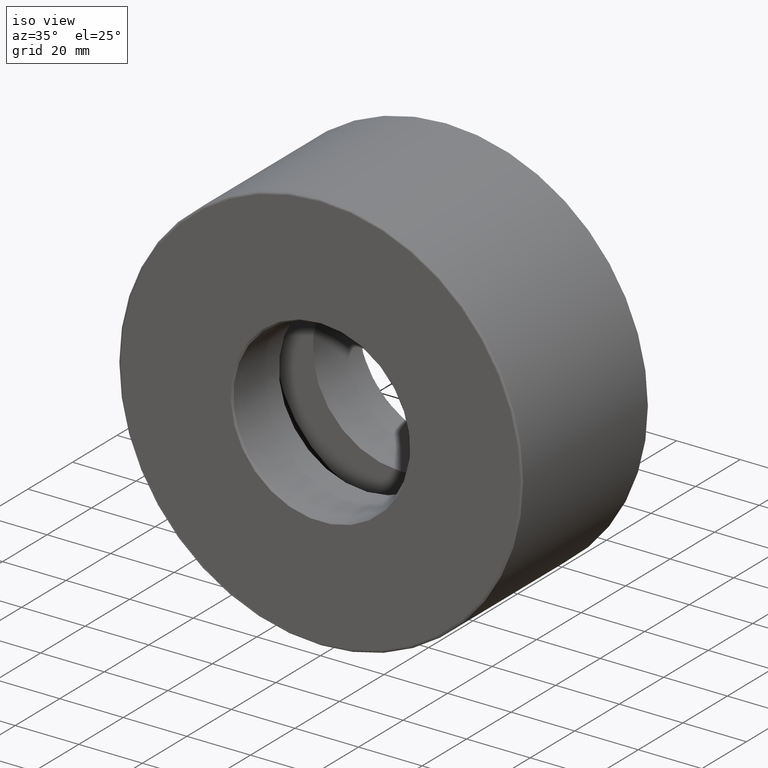
[diagram: clean part render]
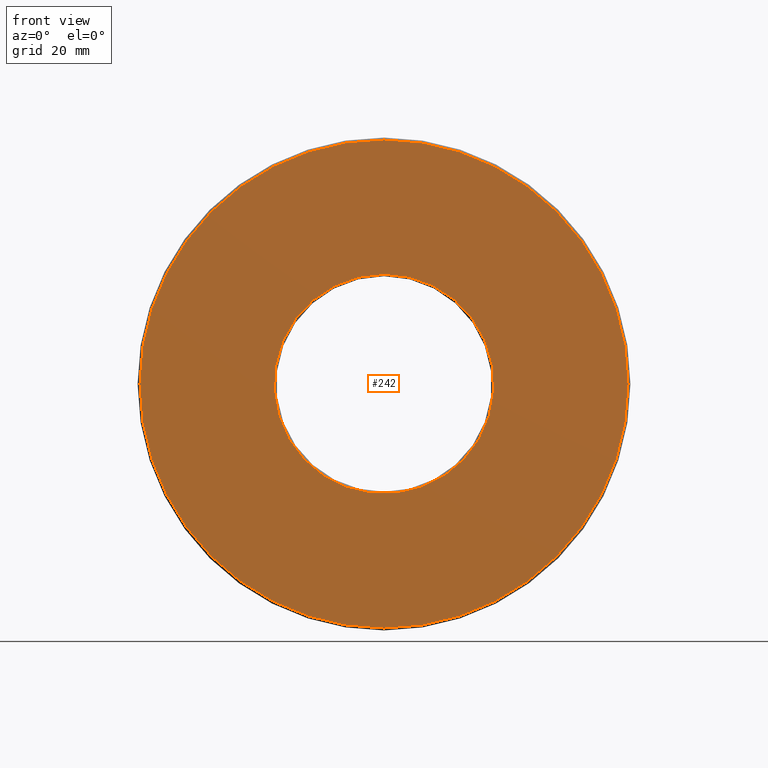
[diagram: tour spotlight — one face highlighted and labeled with its STEP entity id]
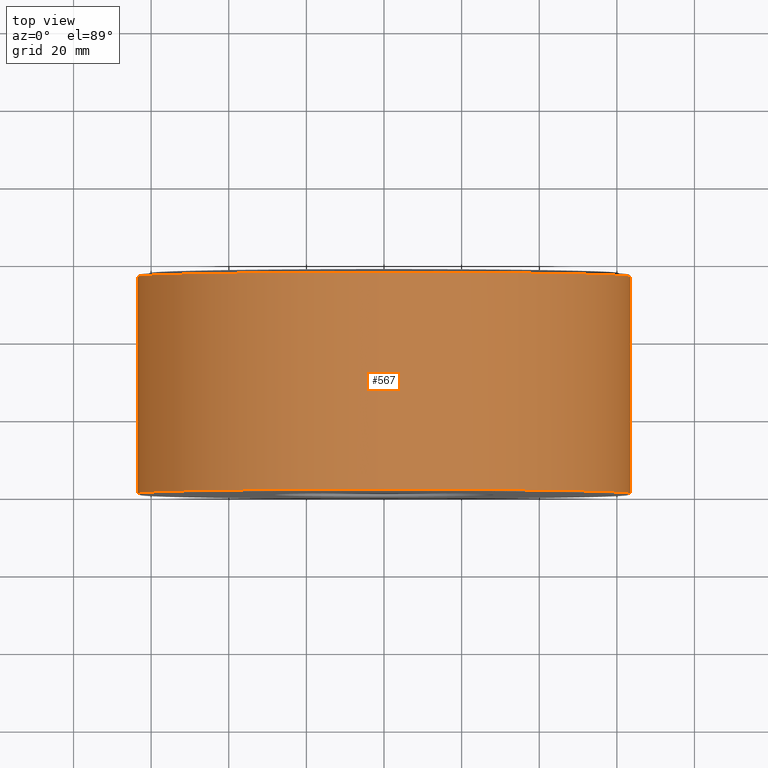
[diagram: tour spotlight — one face highlighted and labeled with its STEP entity id]
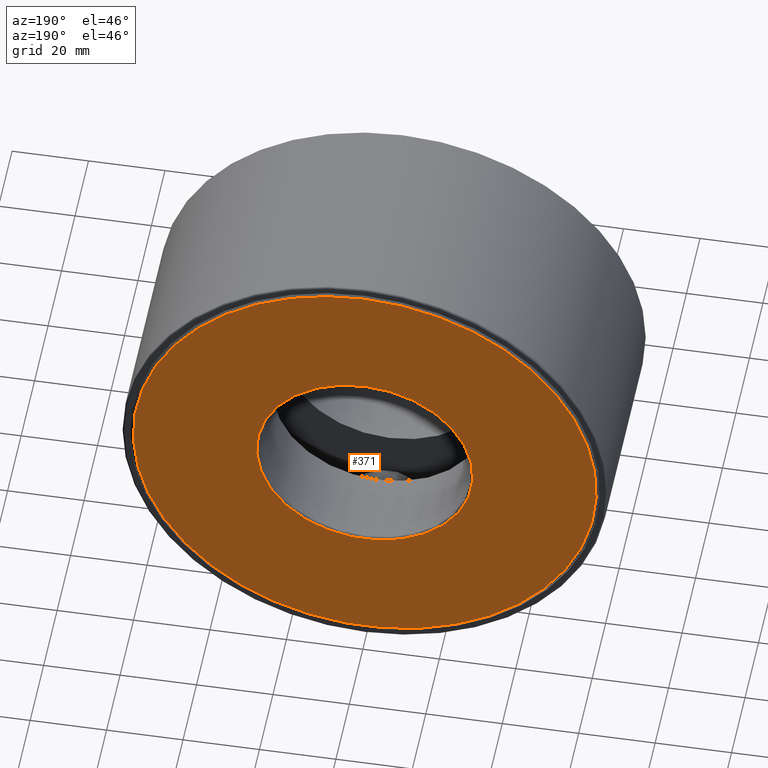
[diagram: tour spotlight — one face highlighted and labeled with its STEP entity id]
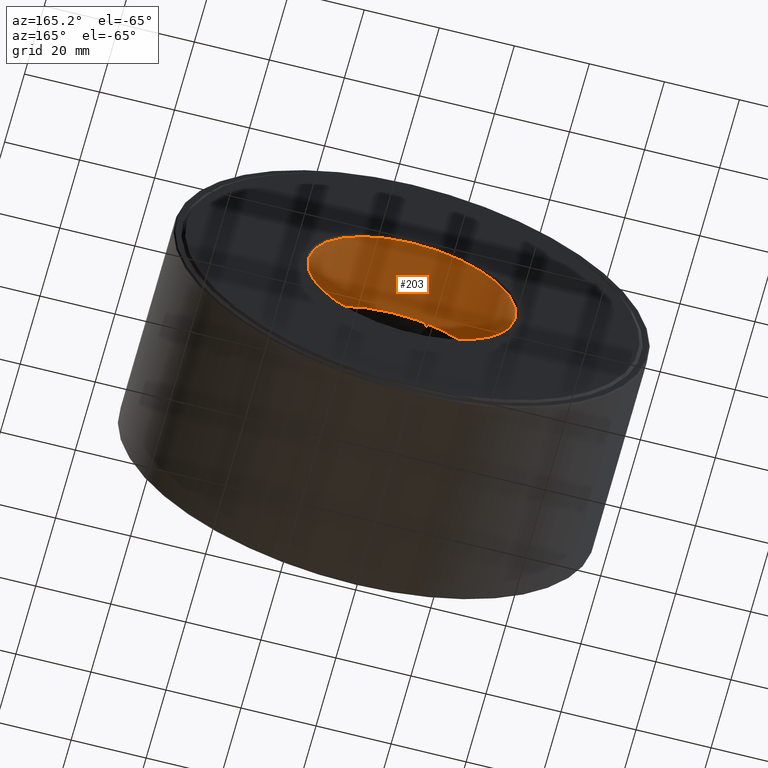
[diagram: tour spotlight — one face highlighted and labeled with its STEP entity id]
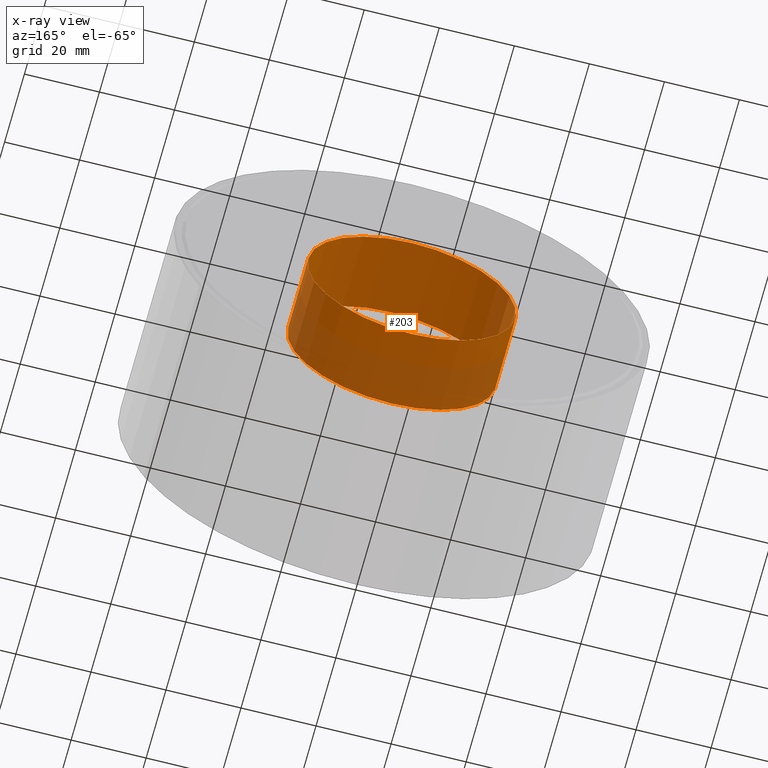
[diagram: x-ray of the same camera — body ghosted, this tour face saturated]
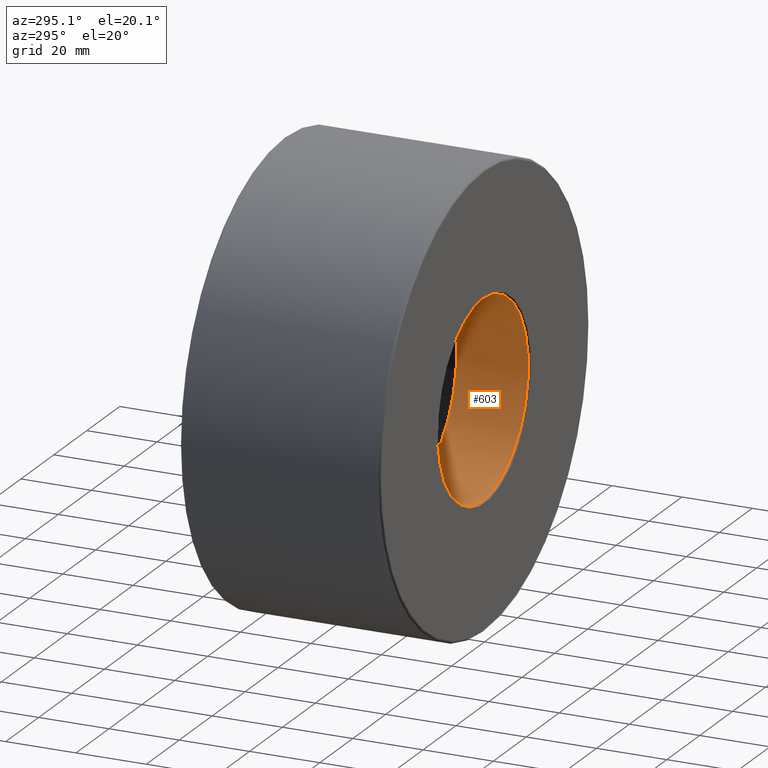
[diagram: tour spotlight — one face highlighted and labeled with its STEP entity id]
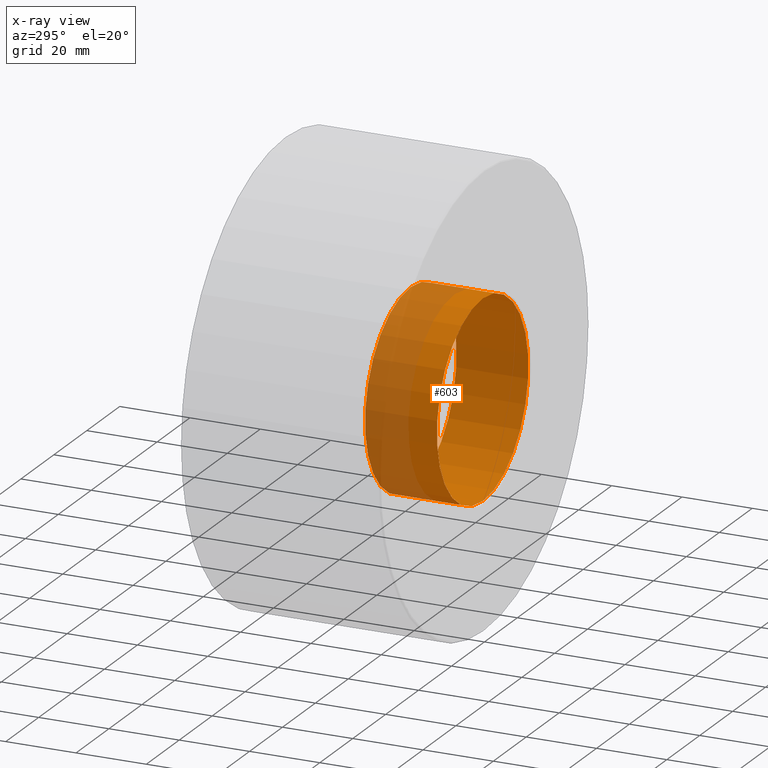
[diagram: x-ray of the same camera — body ghosted, this tour face saturated]
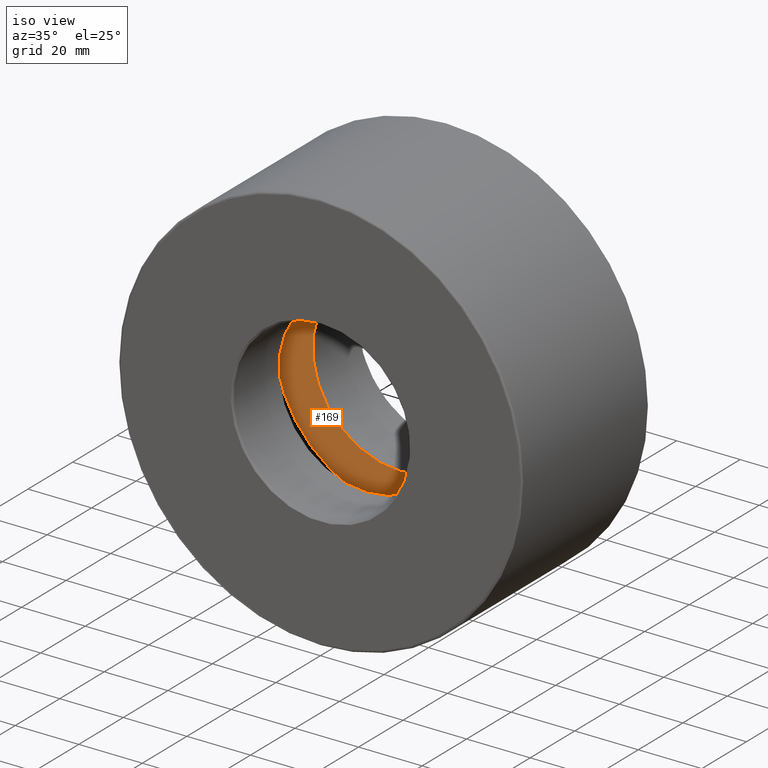
[diagram: tour spotlight — one face highlighted and labeled with its STEP entity id]
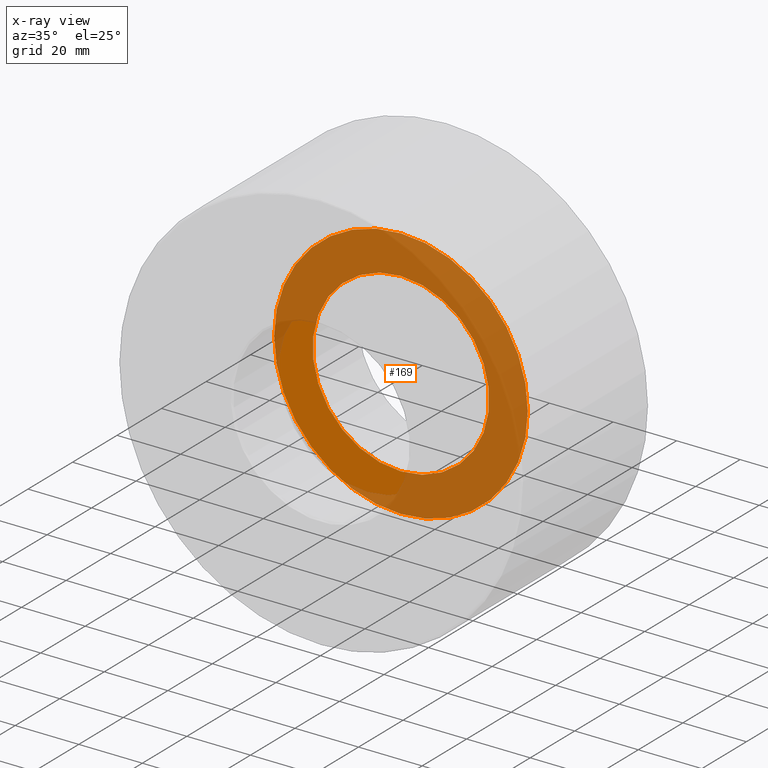
[diagram: x-ray of the same camera — body ghosted, this tour face saturated]
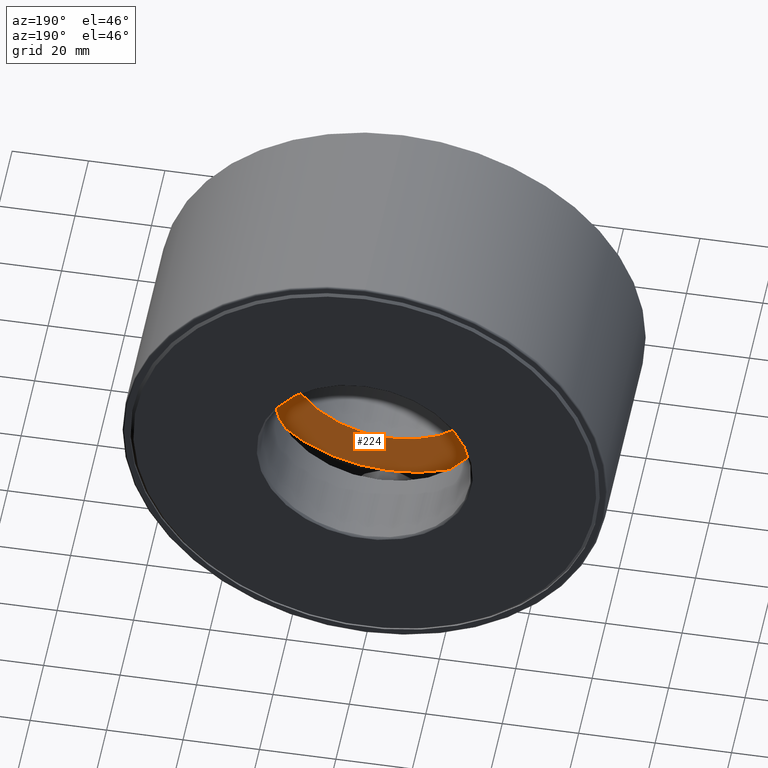
[diagram: tour spotlight — one face highlighted and labeled with its STEP entity id]
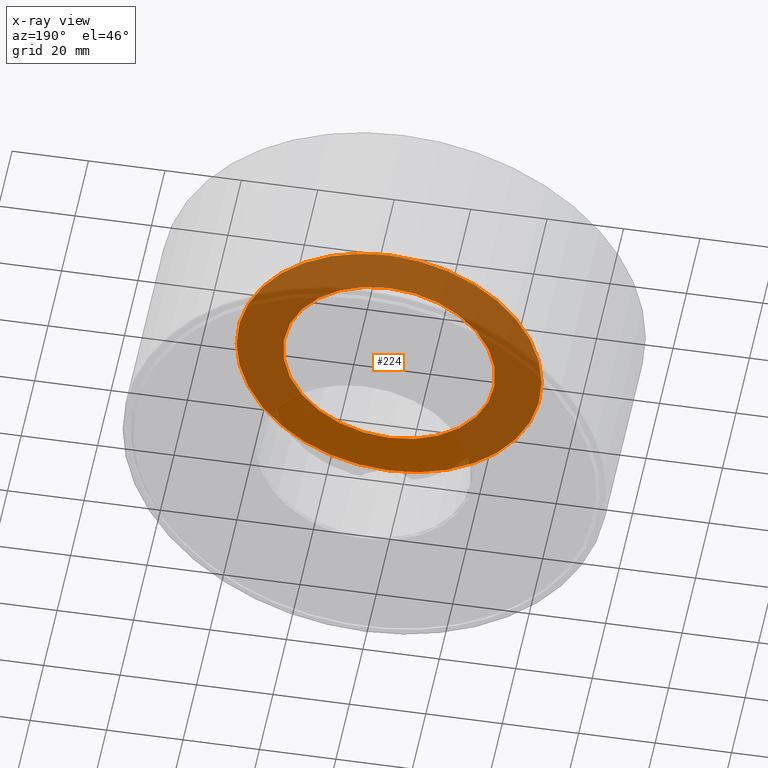
[diagram: x-ray of the same camera — body ghosted, this tour face saturated]
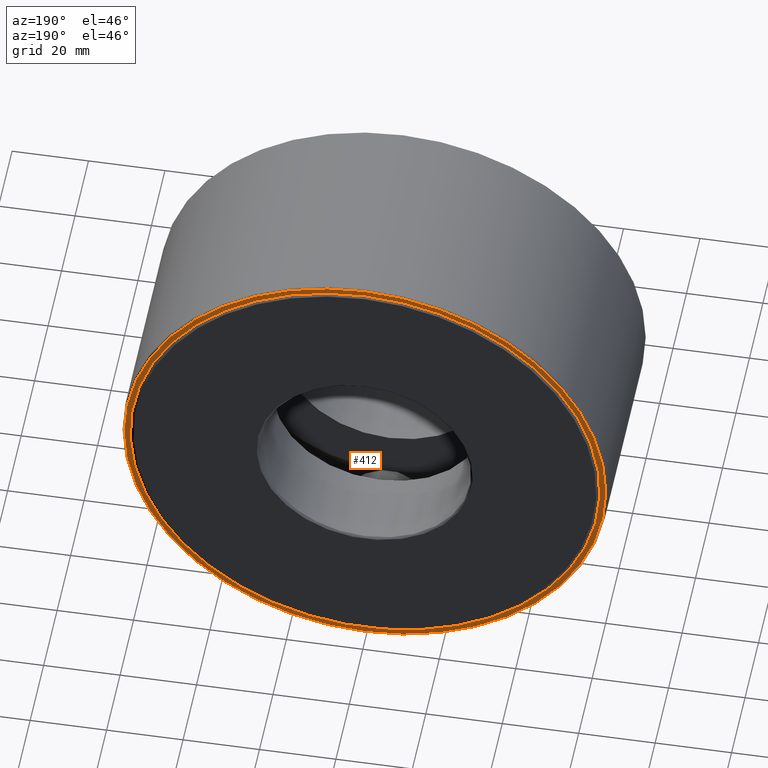
[diagram: tour spotlight — one face highlighted and labeled with its STEP entity id]
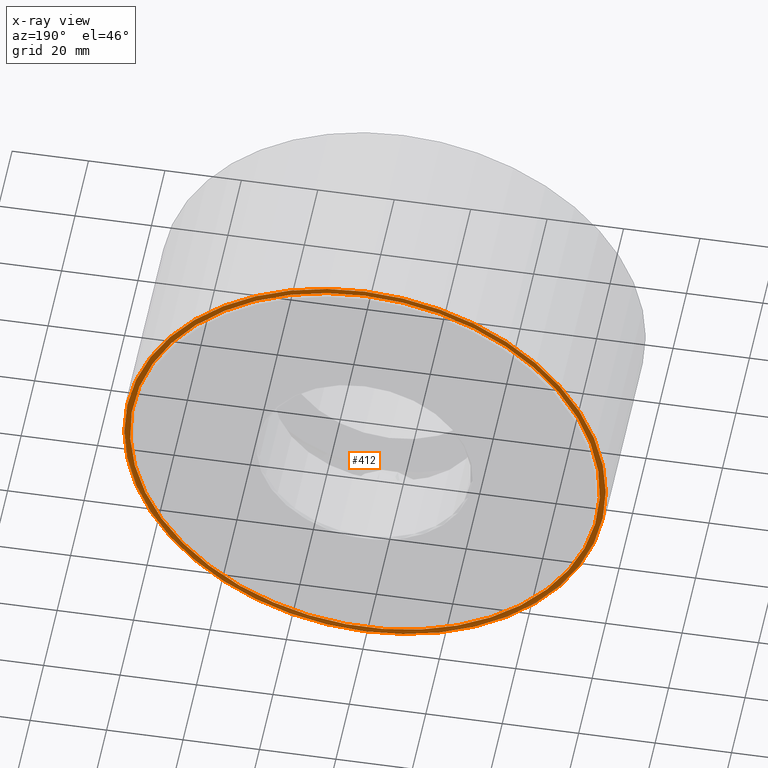
[diagram: x-ray of the same camera — body ghosted, this tour face saturated]
A machine part: a face-by-face anatomy tour. The part has 28 B-rep faces; the first image is the clean iso view, then the 8 largest visible faces are spotlighted one at a time (largest first), each with its STEP entity span.

Face 1 — front view, entity #242. In plain terms, the highlighted planar face has unit normal (-0, 1, 0).
Definition (entity closure, byte-faithful):
#36 = CARTESIAN_POINT ( 'NONE',  ( 0.0000000000000000000, -1.515321933985645800E-016, 0.0000000000000000000 ) ) ;
#38 = DIRECTION ( 'NONE',  ( -0.0000000000000000000, 1.000000000000000000, -0.0000000000000000000 ) ) ;
#83 = DIRECTION ( 'NONE',  ( 0.0000000000000000000, 0.0000000000000000000, 1.000000000000000000 ) ) ;
#141 = CARTESIAN_POINT ( 'NONE',  ( 0.0000000000000000000, 2.048885995248197400E-016, 1.113750000000000500 ) ) ;
#164 = VERTEX_POINT ( 'NONE', #141 ) ;
#173 = FACE_OUTER_BOUND ( 'NONE', #530, .T. ) ;
#176 = DIRECTION ( 'NONE',  ( 0.0000000000000000000, 0.0000000000000000000, 1.000000000000000000 ) ) ;
#189 = CARTESIAN_POINT ( 'NONE',  ( 0.0000000000000000000, -1.515321933985645800E-016, 2.475000000000000100 ) ) ;
#209 = AXIS2_PLACEMENT_3D ( 'NONE', #361, #38, #83 ) ;
#214 = ORIENTED_EDGE ( 'NONE', *, *, #438, .T. ) ;
#242 = ADVANCED_FACE ( 'NONE', ( #173, #392 ), #573, .F. ) ;
#260 = VERTEX_POINT ( 'NONE', #189 ) ;
#270 = DIRECTION ( 'NONE',  ( -0.0000000000000000000, 1.000000000000000000, -0.0000000000000000000 ) ) ;
#350 = EDGE_LOOP ( 'NONE', ( #214 ) ) ;
#361 = CARTESIAN_POINT ( 'NONE',  ( 0.0000000000000000000, 2.048885995248197400E-016, 0.0000000000000000000 ) ) ;
#392 = FACE_BOUND ( 'NONE', #350, .T. ) ;
#405 = CIRCLE ( 'NONE', #209, 1.113750000000000500 ) ;
#431 = DIRECTION ( 'NONE',  ( 0.0000000000000000000, 0.0000000000000000000, 1.000000000000000000 ) ) ;
#438 = EDGE_CURVE ( 'NONE', #164, #164, #405, .T. ) ;
#463 = ORIENTED_EDGE ( 'NONE', *, *, #535, .F. ) ;
#480 = CIRCLE ( 'NONE', #559, 2.475000000000000100 ) ;
#486 = AXIS2_PLACEMENT_3D ( 'NONE', #517, #529, #431 ) ;
#517 = CARTESIAN_POINT ( 'NONE',  ( -4.007470305718259500E-032, 2.667820306312760200E-017, 0.0000000000000000000 ) ) ;
#529 = DIRECTION ( 'NONE',  ( -0.0000000000000000000, 1.000000000000000000, 0.0000000000000000000 ) ) ;
#530 = EDGE_LOOP ( 'NONE', ( #463 ) ) ;
#535 = EDGE_CURVE ( 'NONE', #260, #260, #480, .T. ) ;
#559 = AXIS2_PLACEMENT_3D ( 'NONE', #36, #270, #176 ) ;
#573 = PLANE ( 'NONE',  #486 ) ;

Face 2 — top view, entity #567. In plain terms, the highlighted cylindrical surface (bore or boss wall) has radius 63.5 mm, axis along (-0, 1, -0).
Definition (entity closure, byte-faithful):
#21 = AXIS2_PLACEMENT_3D ( 'NONE', #319, #410, #85 ) ;
#24 = AXIS2_PLACEMENT_3D ( 'NONE', #340, #444, #266 ) ;
#85 = DIRECTION ( 'NONE',  ( 0.0000000000000000000, 0.0000000000000000000, 1.000000000000000000 ) ) ;
#105 = EDGE_LOOP ( 'NONE', ( #593 ) ) ;
#131 = VERTEX_POINT ( 'NONE', #562 ) ;
#221 = AXIS2_PLACEMENT_3D ( 'NONE', #601, #500, #321 ) ;
#231 = CYLINDRICAL_SURFACE ( 'NONE', #21, 2.500000000000000000 ) ;
#247 = FACE_OUTER_BOUND ( 'NONE', #105, .T. ) ;
#266 = DIRECTION ( 'NONE',  ( 0.0000000000000000000, 0.0000000000000000000, 1.000000000000000000 ) ) ;
#296 = EDGE_CURVE ( 'NONE', #525, #525, #581, .T. ) ;
#312 = ORIENTED_EDGE ( 'NONE', *, *, #482, .T. ) ;
#319 = CARTESIAN_POINT ( 'NONE',  ( 0.0000000000000000000, 0.0000000000000000000, 0.0000000000000000000 ) ) ;
#321 = DIRECTION ( 'NONE',  ( 0.0000000000000000000, 0.0000000000000000000, 1.000000000000000000 ) ) ;
#340 = CARTESIAN_POINT ( 'NONE',  ( 0.0000000000000000000, 2.214999999999999900, 0.0000000000000000000 ) ) ;
#343 = EDGE_LOOP ( 'NONE', ( #312 ) ) ;
#396 = FACE_OUTER_BOUND ( 'NONE', #343, .T. ) ;
#410 = DIRECTION ( 'NONE',  ( -0.0000000000000000000, 1.000000000000000000, -0.0000000000000000000 ) ) ;
#444 = DIRECTION ( 'NONE',  ( -0.0000000000000000000, 1.000000000000000000, -0.0000000000000000000 ) ) ;
#469 = CARTESIAN_POINT ( 'NONE',  ( 0.0000000000000000000, 2.214999999999999900, 2.500000000000000000 ) ) ;
#482 = EDGE_CURVE ( 'NONE', #131, #131, #545, .T. ) ;
#500 = DIRECTION ( 'NONE',  ( -0.0000000000000000000, 1.000000000000000000, -0.0000000000000000000 ) ) ;
#525 = VERTEX_POINT ( 'NONE', #469 ) ;
#545 = CIRCLE ( 'NONE', #221, 2.499999999999999600 ) ;
#562 = CARTESIAN_POINT ( 'NONE',  ( 0.0000000000000000000, 0.01500000000000052300, 2.499999999999999600 ) ) ;
#567 = ADVANCED_FACE ( 'NONE', ( #247, #396 ), #231, .T. ) ;
#581 = CIRCLE ( 'NONE', #24, 2.500000000000000000 ) ;
#593 = ORIENTED_EDGE ( 'NONE', *, *, #296, .F. ) ;
#601 = CARTESIAN_POINT ( 'NONE',  ( 0.0000000000000000000, 0.01500000000000052300, 0.0000000000000000000 ) ) ;

Face 3 — auxiliary view, entity #371. In plain terms, the highlighted planar face has unit normal (-0, 1, 0).
Definition (entity closure, byte-faithful):
#73 = CARTESIAN_POINT ( 'NONE',  ( -1.450538757697839700E-015, 2.250000000000000400, 0.0000000000000000000 ) ) ;
#80 = ORIENTED_EDGE ( 'NONE', *, *, #341, .F. ) ;
#81 = FACE_BOUND ( 'NONE', #225, .T. ) ;
#97 = CARTESIAN_POINT ( 'NONE',  ( 0.0000000000000000000, 2.250000000000000400, 1.113750000000000500 ) ) ;
#123 = AXIS2_PLACEMENT_3D ( 'NONE', #73, #261, #357 ) ;
#172 = EDGE_LOOP ( 'NONE', ( #586 ) ) ;
#211 = CIRCLE ( 'NONE', #263, 1.113750000000000500 ) ;
#215 = VERTEX_POINT ( 'NONE', #97 ) ;
#225 = EDGE_LOOP ( 'NONE', ( #80 ) ) ;
#228 = CARTESIAN_POINT ( 'NONE',  ( 0.0000000000000000000, 2.249999999999999600, 0.0000000000000000000 ) ) ;
#237 = AXIS2_PLACEMENT_3D ( 'NONE', #228, #606, #406 ) ;
#252 = VERTEX_POINT ( 'NONE', #380 ) ;
#261 = DIRECTION ( 'NONE',  ( -0.0000000000000000000, 1.000000000000000000, 0.0000000000000000000 ) ) ;
#263 = AXIS2_PLACEMENT_3D ( 'NONE', #589, #493, #309 ) ;
#309 = DIRECTION ( 'NONE',  ( 0.0000000000000000000, 0.0000000000000000000, 1.000000000000000000 ) ) ;
#314 = PLANE ( 'NONE',  #123 ) ;
#341 = EDGE_CURVE ( 'NONE', #215, #215, #211, .T. ) ;
#357 = DIRECTION ( 'NONE',  ( 0.0000000000000000000, 0.0000000000000000000, 1.000000000000000000 ) ) ;
#371 = ADVANCED_FACE ( 'NONE', ( #443, #81 ), #314, .T. ) ;
#380 = CARTESIAN_POINT ( 'NONE',  ( 0.0000000000000000000, 2.249999999999999600, 2.385000000000000700 ) ) ;
#406 = DIRECTION ( 'NONE',  ( 0.0000000000000000000, 0.0000000000000000000, 1.000000000000000000 ) ) ;
#443 = FACE_OUTER_BOUND ( 'NONE', #172, .T. ) ;
#473 = EDGE_CURVE ( 'NONE', #252, #252, #580, .T. ) ;
#493 = DIRECTION ( 'NONE',  ( -0.0000000000000000000, 1.000000000000000000, -0.0000000000000000000 ) ) ;
#580 = CIRCLE ( 'NONE', #237, 2.385000000000000700 ) ;
#586 = ORIENTED_EDGE ( 'NONE', *, *, #473, .T. ) ;
#589 = CARTESIAN_POINT ( 'NONE',  ( 0.0000000000000000000, 2.250000000000000400, 0.0000000000000000000 ) ) ;
#606 = DIRECTION ( 'NONE',  ( -0.0000000000000000000, 1.000000000000000000, -0.0000000000000000000 ) ) ;

Face 4 — auxiliary view, entity #203. An x-ray twin of the same camera follows (body ghosted, this face saturated) — the face is partly hidden behind the body. In plain terms, the highlighted cylindrical surface (bore or boss wall) has radius 27.7813 mm, axis along (-0, 1, -0).
Definition (entity closure, byte-faithful):
#56 = CARTESIAN_POINT ( 'NONE',  ( 0.0000000000000000000, 0.0000000000000000000, 0.0000000000000000000 ) ) ;
#58 = CIRCLE ( 'NONE', #414, 1.093750000000000200 ) ;
#68 = FACE_OUTER_BOUND ( 'NONE', #95, .T. ) ;
#95 = EDGE_LOOP ( 'NONE', ( #267 ) ) ;
#107 = VERTEX_POINT ( 'NONE', #198 ) ;
#127 = CARTESIAN_POINT ( 'NONE',  ( 0.0000000000000000000, 2.230000000000000000, 0.0000000000000000000 ) ) ;
#136 = CIRCLE ( 'NONE', #359, 1.093750000000000200 ) ;
#198 = CARTESIAN_POINT ( 'NONE',  ( 0.0000000000000000000, 2.230000000000000000, 1.093750000000000200 ) ) ;
#203 = ADVANCED_FACE ( 'NONE', ( #532, #68 ), #253, .F. ) ;
#206 = DIRECTION ( 'NONE',  ( 0.0000000000000000000, 0.0000000000000000000, 1.000000000000000000 ) ) ;
#253 = CYLINDRICAL_SURFACE ( 'NONE', #271, 1.093750000000000200 ) ;
#265 = DIRECTION ( 'NONE',  ( 0.0000000000000000000, 0.0000000000000000000, 1.000000000000000000 ) ) ;
#267 = ORIENTED_EDGE ( 'NONE', *, *, #494, .F. ) ;
#268 = VERTEX_POINT ( 'NONE', #323 ) ;
#271 = AXIS2_PLACEMENT_3D ( 'NONE', #56, #439, #206 ) ;
#308 = DIRECTION ( 'NONE',  ( -0.0000000000000000000, 1.000000000000000000, -0.0000000000000000000 ) ) ;
#323 = CARTESIAN_POINT ( 'NONE',  ( 0.0000000000000000000, 1.425000000000000300, 1.093750000000000200 ) ) ;
#359 = AXIS2_PLACEMENT_3D ( 'NONE', #127, #308, #265 ) ;
#366 = DIRECTION ( 'NONE',  ( 0.0000000000000000000, 0.0000000000000000000, 1.000000000000000000 ) ) ;
#370 = CARTESIAN_POINT ( 'NONE',  ( 0.0000000000000000000, 1.425000000000000300, 0.0000000000000000000 ) ) ;
#404 = EDGE_LOOP ( 'NONE', ( #520 ) ) ;
#414 = AXIS2_PLACEMENT_3D ( 'NONE', #370, #592, #366 ) ;
#436 = EDGE_CURVE ( 'NONE', #107, #107, #136, .T. ) ;
#439 = DIRECTION ( 'NONE',  ( -0.0000000000000000000, 1.000000000000000000, -0.0000000000000000000 ) ) ;
#494 = EDGE_CURVE ( 'NONE', #268, #268, #58, .T. ) ;
#520 = ORIENTED_EDGE ( 'NONE', *, *, #436, .T. ) ;
#532 = FACE_OUTER_BOUND ( 'NONE', #404, .T. ) ;
#592 = DIRECTION ( 'NONE',  ( -0.0000000000000000000, 1.000000000000000000, -0.0000000000000000000 ) ) ;

Face 5 — auxiliary view, entity #603. An x-ray twin of the same camera follows (body ghosted, this face saturated) — the face is partly hidden behind the body. In plain terms, the highlighted cylindrical surface (bore or boss wall) has radius 27.7812 mm, axis along (-0, 1, -0).
Definition (entity closure, byte-faithful):
#3 = CARTESIAN_POINT ( 'NONE',  ( 0.0000000000000000000, 0.0000000000000000000, 0.0000000000000000000 ) ) ;
#51 = FACE_OUTER_BOUND ( 'NONE', #79, .T. ) ;
#79 = EDGE_LOOP ( 'NONE', ( #337 ) ) ;
#84 = AXIS2_PLACEMENT_3D ( 'NONE', #3, #508, #289 ) ;
#120 = AXIS2_PLACEMENT_3D ( 'NONE', #447, #171, #168 ) ;
#124 = EDGE_LOOP ( 'NONE', ( #130 ) ) ;
#130 = ORIENTED_EDGE ( 'NONE', *, *, #400, .T. ) ;
#168 = DIRECTION ( 'NONE',  ( 0.0000000000000000000, 0.0000000000000000000, 1.000000000000000000 ) ) ;
#171 = DIRECTION ( 'NONE',  ( -0.0000000000000000000, 1.000000000000000000, -0.0000000000000000000 ) ) ;
#201 = CARTESIAN_POINT ( 'NONE',  ( 0.0000000000000000000, 0.02000000000000060800, 1.093750000000000000 ) ) ;
#234 = CARTESIAN_POINT ( 'NONE',  ( 0.0000000000000000000, 0.02000000000000060800, 0.0000000000000000000 ) ) ;
#274 = DIRECTION ( 'NONE',  ( 0.0000000000000000000, 0.0000000000000000000, 1.000000000000000000 ) ) ;
#289 = DIRECTION ( 'NONE',  ( 0.0000000000000000000, 0.0000000000000000000, 1.000000000000000000 ) ) ;
#337 = ORIENTED_EDGE ( 'NONE', *, *, #528, .F. ) ;
#338 = FACE_OUTER_BOUND ( 'NONE', #124, .T. ) ;
#400 = EDGE_CURVE ( 'NONE', #411, #411, #435, .T. ) ;
#401 = VERTEX_POINT ( 'NONE', #201 ) ;
#411 = VERTEX_POINT ( 'NONE', #423 ) ;
#423 = CARTESIAN_POINT ( 'NONE',  ( 0.0000000000000000000, 0.8250000000000004000, 1.093750000000000000 ) ) ;
#435 = CIRCLE ( 'NONE', #120, 1.093750000000000000 ) ;
#447 = CARTESIAN_POINT ( 'NONE',  ( 0.0000000000000000000, 0.8250000000000004000, 0.0000000000000000000 ) ) ;
#471 = CYLINDRICAL_SURFACE ( 'NONE', #84, 1.093750000000000000 ) ;
#485 = AXIS2_PLACEMENT_3D ( 'NONE', #234, #548, #274 ) ;
#508 = DIRECTION ( 'NONE',  ( -0.0000000000000000000, 1.000000000000000000, -0.0000000000000000000 ) ) ;
#514 = CIRCLE ( 'NONE', #485, 1.093750000000000000 ) ;
#528 = EDGE_CURVE ( 'NONE', #401, #401, #514, .T. ) ;
#548 = DIRECTION ( 'NONE',  ( -0.0000000000000000000, 1.000000000000000000, -0.0000000000000000000 ) ) ;
#603 = ADVANCED_FACE ( 'NONE', ( #51, #338 ), #471, .F. ) ;

Face 6 — iso view, entity #169. An x-ray twin of the same camera follows (body ghosted, this face saturated) — the face is partly hidden behind the body. In plain terms, the highlighted planar face has unit normal (0, -1, 0).
Definition (entity closure, byte-faithful):
#7 = EDGE_LOOP ( 'NONE', ( #575 ) ) ;
#58 = CIRCLE ( 'NONE', #414, 1.093750000000000200 ) ;
#62 = DIRECTION ( 'NONE',  ( -0.0000000000000000000, 1.000000000000000000, -0.0000000000000000000 ) ) ;
#109 = PLANE ( 'NONE',  #576 ) ;
#126 = FACE_OUTER_BOUND ( 'NONE', #450, .T. ) ;
#139 = CIRCLE ( 'NONE', #368, 1.570999999999999700 ) ;
#153 = VERTEX_POINT ( 'NONE', #284 ) ;
#169 = ADVANCED_FACE ( 'NONE', ( #195, #126 ), #109, .T. ) ;
#188 = EDGE_CURVE ( 'NONE', #153, #153, #139, .T. ) ;
#195 = FACE_BOUND ( 'NONE', #7, .T. ) ;
#249 = DIRECTION ( 'NONE',  ( 0.0000000000000000000, -0.0000000000000000000, -1.000000000000000000 ) ) ;
#268 = VERTEX_POINT ( 'NONE', #323 ) ;
#284 = CARTESIAN_POINT ( 'NONE',  ( 0.0000000000000000000, 1.425000000000000300, 1.570999999999999700 ) ) ;
#323 = CARTESIAN_POINT ( 'NONE',  ( 0.0000000000000000000, 1.425000000000000300, 1.093750000000000200 ) ) ;
#342 = DIRECTION ( 'NONE',  ( 0.0000000000000000000, -1.000000000000000000, 0.0000000000000000000 ) ) ;
#366 = DIRECTION ( 'NONE',  ( 0.0000000000000000000, 0.0000000000000000000, 1.000000000000000000 ) ) ;
#368 = AXIS2_PLACEMENT_3D ( 'NONE', #477, #62, #582 ) ;
#370 = CARTESIAN_POINT ( 'NONE',  ( 0.0000000000000000000, 1.425000000000000300, 0.0000000000000000000 ) ) ;
#389 = ORIENTED_EDGE ( 'NONE', *, *, #188, .F. ) ;
#414 = AXIS2_PLACEMENT_3D ( 'NONE', #370, #592, #366 ) ;
#450 = EDGE_LOOP ( 'NONE', ( #389 ) ) ;
#475 = CARTESIAN_POINT ( 'NONE',  ( 0.0000000000000000000, 1.425000000000000300, 0.0000000000000000000 ) ) ;
#477 = CARTESIAN_POINT ( 'NONE',  ( 0.0000000000000000000, 1.425000000000000300, 0.0000000000000000000 ) ) ;
#494 = EDGE_CURVE ( 'NONE', #268, #268, #58, .T. ) ;
#575 = ORIENTED_EDGE ( 'NONE', *, *, #494, .T. ) ;
#576 = AXIS2_PLACEMENT_3D ( 'NONE', #475, #342, #249 ) ;
#582 = DIRECTION ( 'NONE',  ( 0.0000000000000000000, 0.0000000000000000000, 1.000000000000000000 ) ) ;
#592 = DIRECTION ( 'NONE',  ( -0.0000000000000000000, 1.000000000000000000, -0.0000000000000000000 ) ) ;

Face 7 — auxiliary view, entity #224. An x-ray twin of the same camera follows (body ghosted, this face saturated) — the face is partly hidden behind the body. In plain terms, the highlighted planar face has unit normal (0, -1, 0).
Definition (entity closure, byte-faithful):
#9 = CARTESIAN_POINT ( 'NONE',  ( -2.361209633078072800E-016, 0.8250000000000004000, 0.0000000000000000000 ) ) ;
#31 = ORIENTED_EDGE ( 'NONE', *, *, #148, .T. ) ;
#59 = CIRCLE ( 'NONE', #549, 1.570999999999999700 ) ;
#74 = FACE_OUTER_BOUND ( 'NONE', #156, .T. ) ;
#120 = AXIS2_PLACEMENT_3D ( 'NONE', #447, #171, #168 ) ;
#147 = CARTESIAN_POINT ( 'NONE',  ( 0.0000000000000000000, 0.8250000000000001800, 1.570999999999999700 ) ) ;
#148 = EDGE_CURVE ( 'NONE', #497, #497, #59, .T. ) ;
#149 = CARTESIAN_POINT ( 'NONE',  ( 0.0000000000000000000, 0.8250000000000001800, 0.0000000000000000000 ) ) ;
#156 = EDGE_LOOP ( 'NONE', ( #31 ) ) ;
#161 = DIRECTION ( 'NONE',  ( 0.0000000000000000000, -1.000000000000000000, 0.0000000000000000000 ) ) ;
#168 = DIRECTION ( 'NONE',  ( 0.0000000000000000000, 0.0000000000000000000, 1.000000000000000000 ) ) ;
#171 = DIRECTION ( 'NONE',  ( -0.0000000000000000000, 1.000000000000000000, -0.0000000000000000000 ) ) ;
#216 = DIRECTION ( 'NONE',  ( 0.0000000000000000000, -0.0000000000000000000, -1.000000000000000000 ) ) ;
#224 = ADVANCED_FACE ( 'NONE', ( #506, #74 ), #524, .F. ) ;
#299 = ORIENTED_EDGE ( 'NONE', *, *, #400, .F. ) ;
#400 = EDGE_CURVE ( 'NONE', #411, #411, #435, .T. ) ;
#411 = VERTEX_POINT ( 'NONE', #423 ) ;
#423 = CARTESIAN_POINT ( 'NONE',  ( 0.0000000000000000000, 0.8250000000000004000, 1.093750000000000000 ) ) ;
#425 = DIRECTION ( 'NONE',  ( -0.0000000000000000000, 1.000000000000000000, -0.0000000000000000000 ) ) ;
#435 = CIRCLE ( 'NONE', #120, 1.093750000000000000 ) ;
#447 = CARTESIAN_POINT ( 'NONE',  ( 0.0000000000000000000, 0.8250000000000004000, 0.0000000000000000000 ) ) ;
#476 = DIRECTION ( 'NONE',  ( 0.0000000000000000000, 0.0000000000000000000, 1.000000000000000000 ) ) ;
#497 = VERTEX_POINT ( 'NONE', #147 ) ;
#506 = FACE_BOUND ( 'NONE', #539, .T. ) ;
#524 = PLANE ( 'NONE',  #598 ) ;
#539 = EDGE_LOOP ( 'NONE', ( #299 ) ) ;
#549 = AXIS2_PLACEMENT_3D ( 'NONE', #149, #425, #476 ) ;
#598 = AXIS2_PLACEMENT_3D ( 'NONE', #9, #161, #216 ) ;

Face 8 — auxiliary view, entity #412. An x-ray twin of the same camera follows (body ghosted, this face saturated) — the face is partly hidden behind the body. In plain terms, the highlighted planar face has unit normal (0, -1, 0).
Definition (entity closure, byte-faithful):
#16 = CIRCLE ( 'NONE', #459, 2.480000000000000400 ) ;
#17 = DIRECTION ( 'NONE',  ( -0.0000000000000000000, 1.000000000000000000, -0.0000000000000000000 ) ) ;
#22 = VERTEX_POINT ( 'NONE', #243 ) ;
#52 = EDGE_CURVE ( 'NONE', #22, #22, #451, .T. ) ;
#64 = ORIENTED_EDGE ( 'NONE', *, *, #278, .T. ) ;
#87 = VERTEX_POINT ( 'NONE', #196 ) ;
#88 = FACE_BOUND ( 'NONE', #372, .T. ) ;
#157 = DIRECTION ( 'NONE',  ( 0.0000000000000000000, 0.0000000000000000000, 1.000000000000000000 ) ) ;
#167 = AXIS2_PLACEMENT_3D ( 'NONE', #491, #355, #492 ) ;
#190 = DIRECTION ( 'NONE',  ( 0.0000000000000000000, 0.0000000000000000000, 1.000000000000000000 ) ) ;
#196 = CARTESIAN_POINT ( 'NONE',  ( 0.0000000000000000000, 2.234999999999999900, 2.480000000000000400 ) ) ;
#243 = CARTESIAN_POINT ( 'NONE',  ( 0.0000000000000000000, 2.234999999999999900, 2.420000000000000400 ) ) ;
#278 = EDGE_CURVE ( 'NONE', #87, #87, #16, .T. ) ;
#292 = CARTESIAN_POINT ( 'NONE',  ( 0.0000000000000000000, 2.234999999999999900, 0.0000000000000000000 ) ) ;
#339 = FACE_OUTER_BOUND ( 'NONE', #434, .T. ) ;
#355 = DIRECTION ( 'NONE',  ( 0.0000000000000000000, -1.000000000000000000, 0.0000000000000000000 ) ) ;
#372 = EDGE_LOOP ( 'NONE', ( #409 ) ) ;
#398 = PLANE ( 'NONE',  #167 ) ;
#409 = ORIENTED_EDGE ( 'NONE', *, *, #52, .F. ) ;
#412 = ADVANCED_FACE ( 'NONE', ( #88, #339 ), #398, .F. ) ;
#434 = EDGE_LOOP ( 'NONE', ( #64 ) ) ;
#451 = CIRCLE ( 'NONE', #602, 2.420000000000000400 ) ;
#459 = AXIS2_PLACEMENT_3D ( 'NONE', #292, #17, #157 ) ;
#466 = CARTESIAN_POINT ( 'NONE',  ( 0.0000000000000000000, 2.234999999999999900, 0.0000000000000000000 ) ) ;
#491 = CARTESIAN_POINT ( 'NONE',  ( 0.0000000000000000000, 2.234999999999999900, 0.0000000000000000000 ) ) ;
#492 = DIRECTION ( 'NONE',  ( 0.0000000000000000000, -0.0000000000000000000, -1.000000000000000000 ) ) ;
#561 = DIRECTION ( 'NONE',  ( -0.0000000000000000000, 1.000000000000000000, -0.0000000000000000000 ) ) ;
#602 = AXIS2_PLACEMENT_3D ( 'NONE', #466, #561, #190 ) ;